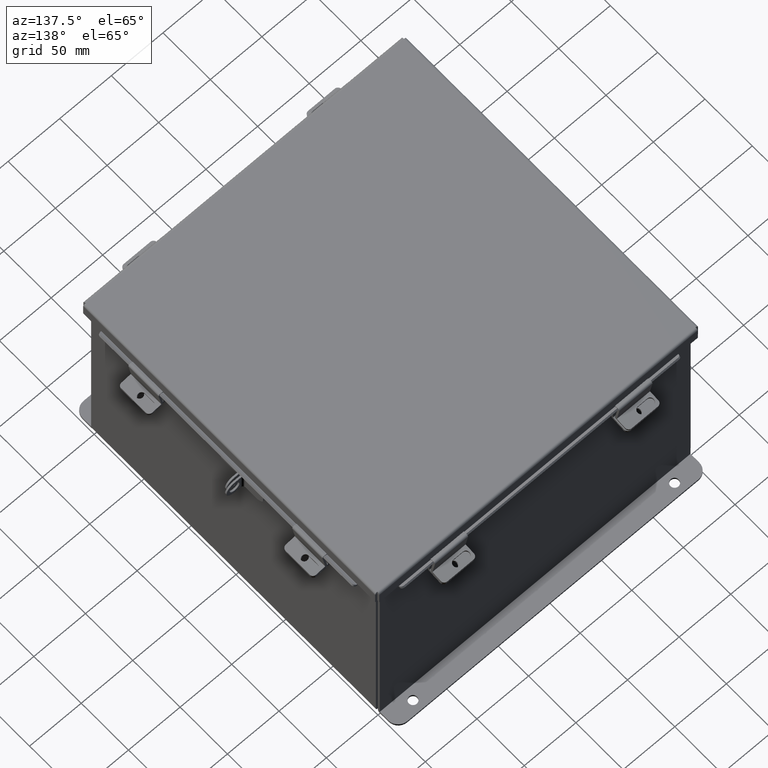
[diagram: clean part render]
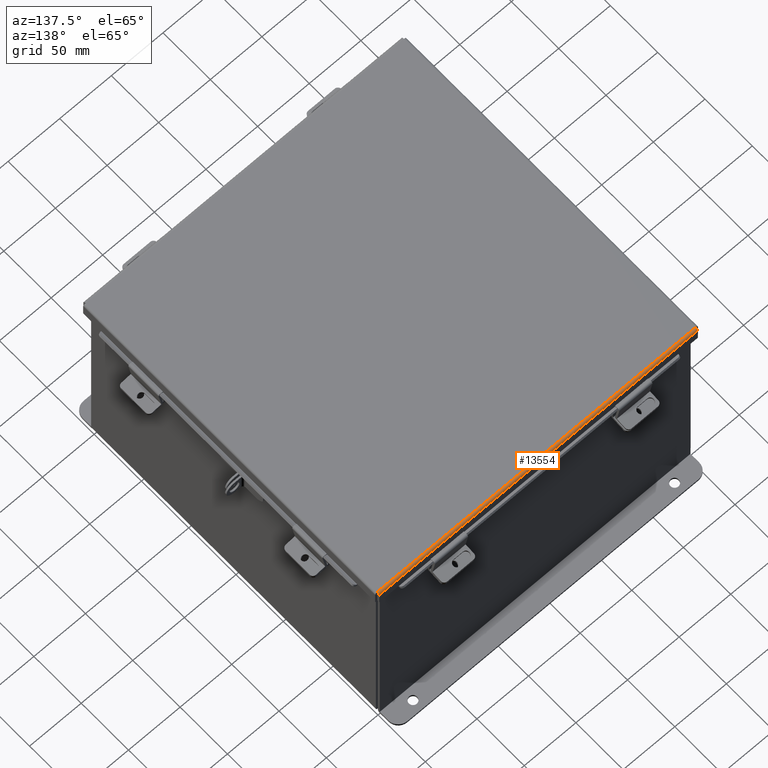
[diagram: same view with one face highlighted and labeled with its STEP entity id]
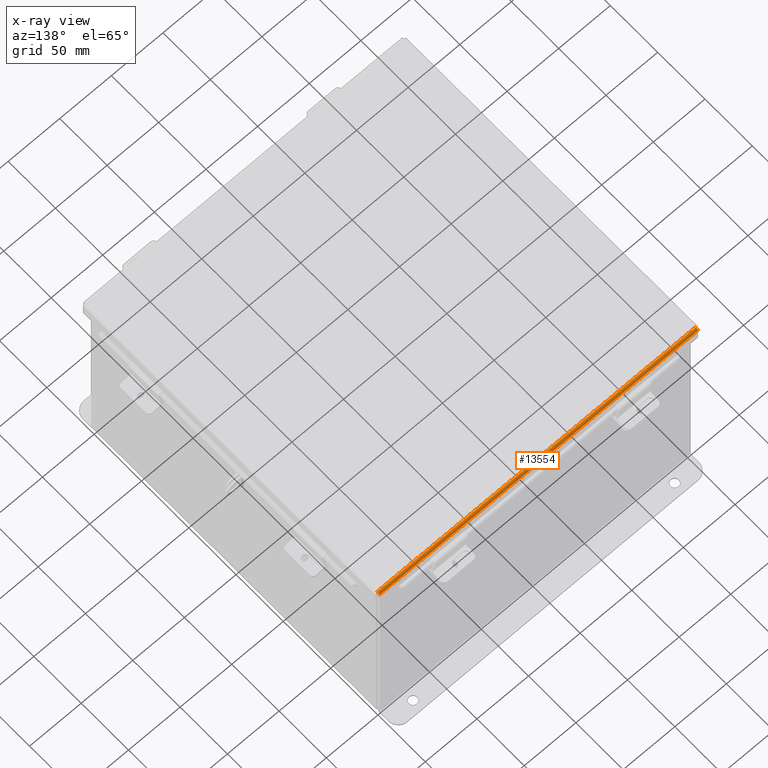
[diagram: x-ray of the same camera — body ghosted, the highlighted face saturated]
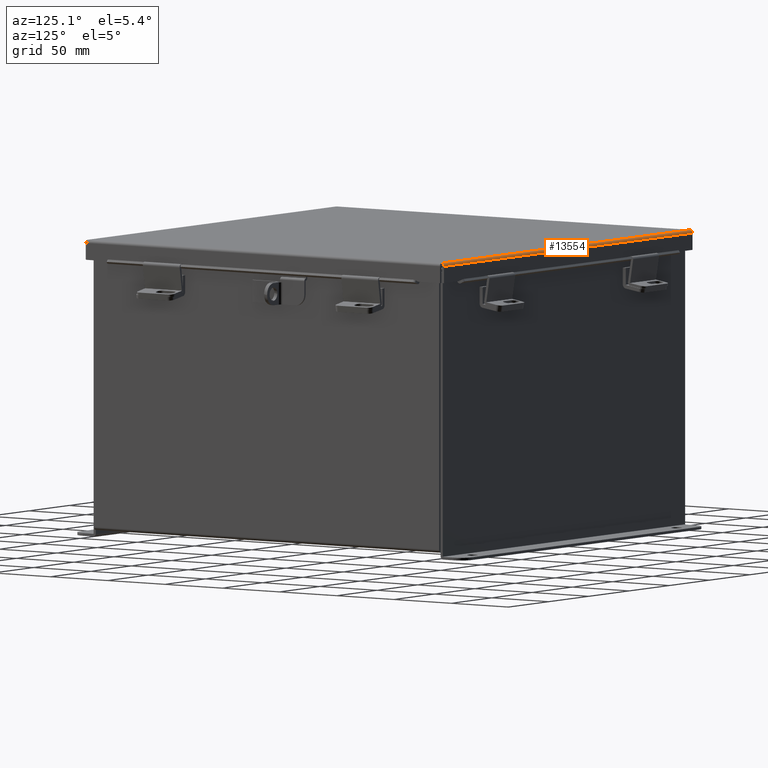
[diagram: same view with one face highlighted and labeled with its STEP entity id]
A machine part, auxiliary view. The second image highlights one B-rep face of the part: STEP entity #13554.
The next image is the same camera in x-ray: the body ghosted, the highlighted face saturated — about 0% of this face is hidden behind the body in this view.
A second angle (auxiliary view) of the same face is appended — the face is thin or edge-on in the first view.
In plain terms, the highlighted cylindrical surface (edge-blend (fillet) strip) has radius 2.2276 mm, axis along (1, -0, 0).
Its self-contained STEP definition (entity closure, byte-faithful):
#24 = AXIS2_PLACEMENT_3D ( 'NONE', #9086, #11792, #15961 ) ;
#378 = CARTESIAN_POINT ( 'NONE',  ( 6.074478932188137400, 6.156250000000000000, 0.01299999999999977400 ) ) ;
#580 = CARTESIAN_POINT ( 'NONE',  ( -6.068550000000000100, 6.068550000000000100, -0.07469999999999993300 ) ) ;
#714 = CARTESIAN_POINT ( 'NONE',  ( 6.156249999999998200, 6.156250000000000000, 0.01299999999999978100 ) ) ;
#1525 = EDGE_CURVE ( 'NONE', #6662, #9018, #5716, .T. ) ;
#2088 = CARTESIAN_POINT ( 'NONE',  ( 6.068550000000000100, 6.068550000000000100, -0.07469999999999993300 ) ) ;
#2699 = CARTESIAN_POINT ( 'NONE',  ( 6.069538155364688800, 6.091505289458310400, -0.07241740374381121200 ) ) ;
#2971 = CARTESIAN_POINT ( 'NONE',  ( -6.074478932188137400, 6.068550000000000100, -0.07469999999999993300 ) ) ;
#3614 = EDGE_CURVE ( 'NONE', #5551, #17841, #9652, .T. ) ;
#3704 = CARTESIAN_POINT ( 'NONE',  ( 6.073490776823449600, 6.153967403743811500, -0.009955289458309054700 ) ) ;
#5255 = CARTESIAN_POINT ( 'NONE',  ( 6.069044077682344900, 6.080029903154992300, -0.07469999999999994700 ) ) ;
#5439 = EDGE_CURVE ( 'NONE', #6662, #17841, #7093, .T. ) ;
#5551 = VERTEX_POINT ( 'NONE', #2088 ) ;
#5568 = DIRECTION ( 'NONE',  ( 1.000000000000000000, -2.487713722829918300E-032, 1.089533968265403200E-046 ) ) ;
#5708 = CYLINDRICAL_SURFACE ( 'NONE', #24, 0.08770000000000026400 ) ;
#5716 = B_SPLINE_CURVE_WITH_KNOTS ( 'NONE', 3,
 ( #16963, #10129, #12906, #14306, #6057, #15681, #7447, #17074, #8809, #580 ),
 .UNSPECIFIED., .F., .F.,
 ( 4, 2, 2, 2, 4 ),
 ( 0.0000000000000000000, 0.2500000000000000000, 0.5000000000000000000, 0.7500000000000000000, 1.000000000000000000 ),
 .UNSPECIFIED. ) ;
#6057 = CARTESIAN_POINT ( 'NONE',  ( -6.072008543776413500, 6.138680782078321100, -0.04089574734180010500 ) ) ;
#6150 = LINE ( 'NONE', #2971, #10220 ) ;
#6599 = CARTESIAN_POINT ( 'NONE',  ( 6.074478932188137400, 6.156250000000000000, 0.01299999999999977400 ) ) ;
#6662 = VERTEX_POINT ( 'NONE', #9311 ) ;
#7062 = DIRECTION ( 'NONE',  ( 1.000000000000000000, 0.0000000000000000000, 0.0000000000000000000 ) ) ;
#7093 = LINE ( 'NONE', #714, #17631 ) ;
#7447 = CARTESIAN_POINT ( 'NONE',  ( -6.070526310729379200, 6.112717384578528100, -0.06363106625866837800 ) ) ;
#8034 = CARTESIAN_POINT ( 'NONE',  ( 6.068550000000000100, 6.068550000000000100, -0.07469999999999993300 ) ) ;
#8809 = CARTESIAN_POINT ( 'NONE',  ( -6.069044077682344900, 6.080029903154993100, -0.07469999999999994700 ) ) ;
#9018 = VERTEX_POINT ( 'NONE', #16082 ) ;
#9086 = CARTESIAN_POINT ( 'NONE',  ( -6.074478932188137400, 6.068550000000000100, 0.01300000000000016400 ) ) ;
#9311 = CARTESIAN_POINT ( 'NONE',  ( -6.074478932188137400, 6.156250000000000000, 0.01299999999999978100 ) ) ;
#9652 = B_SPLINE_CURVE_WITH_KNOTS ( 'NONE', 3,
 ( #8034, #5255, #2699, #16953, #12162, #17558, #12390, #3704, #10776, #6599 ),
 .UNSPECIFIED., .F., .F.,
 ( 4, 2, 2, 2, 4 ),
 ( 0.0000000000000000000, 0.2500000000000000000, 0.5000000000000000000, 0.7500000000000000000, 1.000000000000000000 ),
 .UNSPECIFIED. ) ;
#10129 = CARTESIAN_POINT ( 'NONE',  ( -6.073984854505791700, 6.156249999999999100, 0.001520096845007091700 ) ) ;
#10220 = VECTOR ( 'NONE', #7062, 39.37007874015748100 ) ;
#10306 = ORIENTED_EDGE ( 'NONE', *, *, #1525, .F. ) ;
#10776 = CARTESIAN_POINT ( 'NONE',  ( 6.073984854505791700, 6.156250000000000000, 0.001520096845007091700 ) ) ;
#11792 = DIRECTION ( 'NONE',  ( -1.000000000000000000, -0.0000000000000000000, -0.0000000000000000000 ) ) ;
#11809 = EDGE_LOOP ( 'NONE', ( #16452, #10306, #12649, #14551 ) ) ;
#12162 = CARTESIAN_POINT ( 'NONE',  ( 6.071020388411724000, 6.122445747341799900, -0.05713078207832041800 ) ) ;
#12390 = CARTESIAN_POINT ( 'NONE',  ( 6.072502621458759200, 6.145181066258667900, -0.03116738457852800300 ) ) ;
#12649 = ORIENTED_EDGE ( 'NONE', *, *, #5439, .T. ) ;
#12906 = CARTESIAN_POINT ( 'NONE',  ( -6.073490776823450500, 6.153967403743811500, -0.009955289458309056500 ) ) ;
#13480 = FACE_OUTER_BOUND ( 'NONE', #11809, .T. ) ;
#13554 = ADVANCED_FACE ( 'NONE', ( #13480 ), #5708, .T. ) ;
#14306 = CARTESIAN_POINT ( 'NONE',  ( -6.072502621458756500, 6.145181066258666100, -0.03116738457852799900 ) ) ;
#14551 = ORIENTED_EDGE ( 'NONE', *, *, #3614, .F. ) ;
#15412 = EDGE_CURVE ( 'NONE', #9018, #5551, #6150, .T. ) ;
#15681 = CARTESIAN_POINT ( 'NONE',  ( -6.071020388411725800, 6.122445747341799000, -0.05713078207832041800 ) ) ;
#15961 = DIRECTION ( 'NONE',  ( 0.0000000000000000000, 1.000000000000000000, -4.477801015840783100E-015 ) ) ;
#16082 = CARTESIAN_POINT ( 'NONE',  ( -6.068550000000000100, 6.068550000000000100, -0.07469999999999993300 ) ) ;
#16452 = ORIENTED_EDGE ( 'NONE', *, *, #15412, .F. ) ;
#16953 = CARTESIAN_POINT ( 'NONE',  ( 6.070526310729377400, 6.112717384578525400, -0.06363106625866835100 ) ) ;
#16963 = CARTESIAN_POINT ( 'NONE',  ( -6.074478932188137400, 6.156250000000000000, 0.01299999999999978100 ) ) ;
#17074 = CARTESIAN_POINT ( 'NONE',  ( -6.069538155364689700, 6.091505289458309500, -0.07241740374381121200 ) ) ;
#17558 = CARTESIAN_POINT ( 'NONE',  ( 6.072008543776413500, 6.138680782078321100, -0.04089574734180011200 ) ) ;
#17631 = VECTOR ( 'NONE', #5568, 39.37007874015748100 ) ;
#17841 = VERTEX_POINT ( 'NONE', #378 ) ;